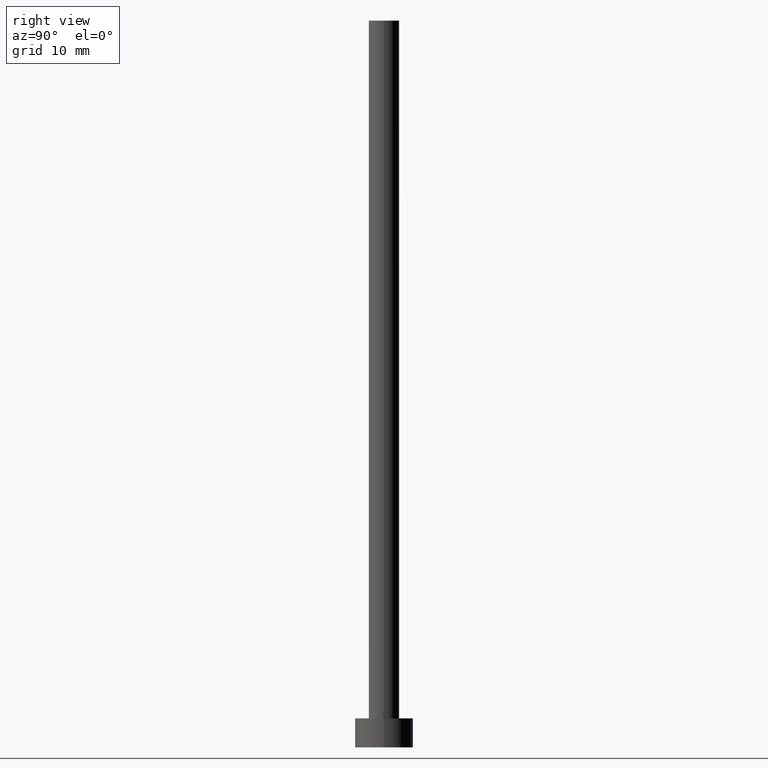
[diagram: clean part render]
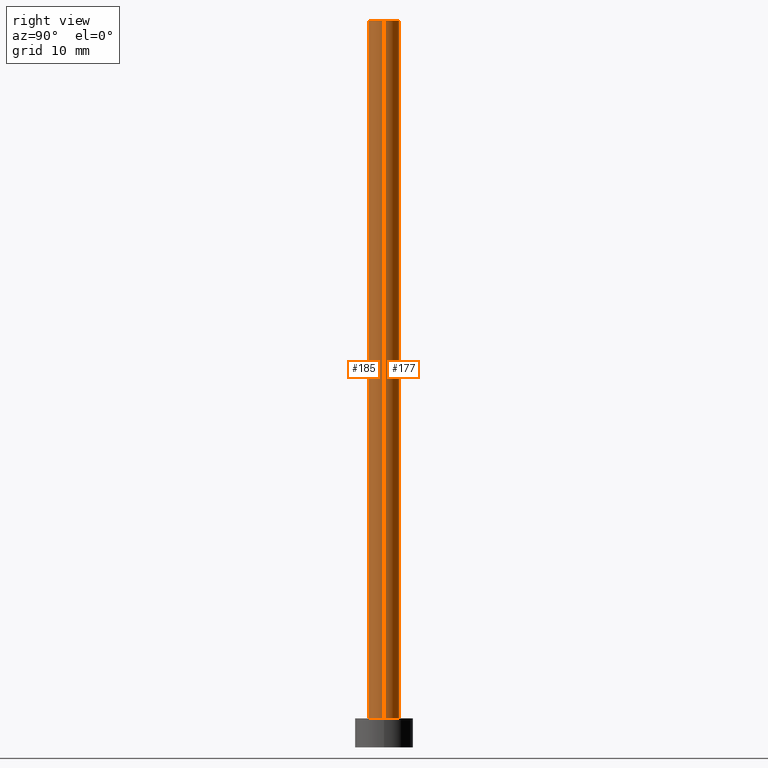
[diagram: same view with one multi-face feature highlighted, each face labeled with its STEP entity id]
A machine part, right view. The highlighted faces form ONE feature: a constant-radius fillet chain: 2 tangent blend faces with common blend radius 2.1 mm. The faces share edges in the B-rep.
Their STEP definitions:
[1] entity #177 (Cylinder):
#4 = VERTEX_POINT ( 'NONE', #62 ) ;
#6 = VERTEX_POINT ( 'NONE', #16 ) ;
#11 = AXIS2_PLACEMENT_3D ( 'NONE', #151, #246, #188 ) ;
#16 = CARTESIAN_POINT ( 'NONE',  ( 2.100000000000000089, 2.571758278209441957E-16, 100.0000000000000000 ) ) ;
#22 = DIRECTION ( 'NONE',  ( -0.000000000000000000, -0.000000000000000000, -1.000000000000000000 ) ) ;
#25 = EDGE_CURVE ( 'NONE', #6, #4, #172, .T. ) ;
#41 = LINE ( 'NONE', #105, #207 ) ;
#42 = DIRECTION ( 'NONE',  ( -1.000000000000000000, 0.000000000000000000, 0.000000000000000000 ) ) ;
#55 = ORIENTED_EDGE ( 'NONE', *, *, #25, .T. ) ;
#57 = EDGE_CURVE ( 'NONE', #6, #129, #235, .T. ) ;
#60 = AXIS2_PLACEMENT_3D ( 'NONE', #109, #180, #42 ) ;
#62 = CARTESIAN_POINT ( 'NONE',  ( 2.100000000000000089, 2.571758278209441957E-16, 4.000000000000000000 ) ) ;
#77 = CYLINDRICAL_SURFACE ( 'NONE', #60, 2.100000000000000089 ) ;
#80 = CARTESIAN_POINT ( 'NONE',  ( -2.100000000000000089, 0.000000000000000000, 100.0000000000000000 ) ) ;
#84 = AXIS2_PLACEMENT_3D ( 'NONE', #213, #152, #208 ) ;
#96 = ORIENTED_EDGE ( 'NONE', *, *, #139, .F. ) ;
#105 = CARTESIAN_POINT ( 'NONE',  ( -2.100000000000000089, 0.000000000000000000, 100.0000000000000000 ) ) ;
#109 = CARTESIAN_POINT ( 'NONE',  ( 0.000000000000000000, 0.000000000000000000, 100.0000000000000000 ) ) ;
#114 = ORIENTED_EDGE ( 'NONE', *, *, #134, .T. ) ;
#121 = CARTESIAN_POINT ( 'NONE',  ( -2.100000000000000089, 0.000000000000000000, 4.000000000000000000 ) ) ;
#129 = VERTEX_POINT ( 'NONE', #80 ) ;
#130 = ORIENTED_EDGE ( 'NONE', *, *, #57, .F. ) ;
#133 = VERTEX_POINT ( 'NONE', #121 ) ;
#134 = EDGE_CURVE ( 'NONE', #4, #133, #254, .T. ) ;
#139 = EDGE_CURVE ( 'NONE', #129, #133, #41, .T. ) ;
#148 = EDGE_LOOP ( 'NONE', ( #130, #55, #114, #96 ) ) ;
#151 = CARTESIAN_POINT ( 'NONE',  ( 0.000000000000000000, 0.000000000000000000, 100.0000000000000000 ) ) ;
#152 = DIRECTION ( 'NONE',  ( 0.000000000000000000, 0.000000000000000000, 1.000000000000000000 ) ) ;
#156 = VECTOR ( 'NONE', #191, 1000.000000000000000 ) ;
#172 = LINE ( 'NONE', #214, #156 ) ;
#177 = ADVANCED_FACE ( 'NONE', ( #244 ), #77, .T. ) ;
#180 = DIRECTION ( 'NONE',  ( -0.000000000000000000, -0.000000000000000000, -1.000000000000000000 ) ) ;
#188 = DIRECTION ( 'NONE',  ( 1.000000000000000000, 0.000000000000000000, 0.000000000000000000 ) ) ;
#191 = DIRECTION ( 'NONE',  ( -0.000000000000000000, -0.000000000000000000, -1.000000000000000000 ) ) ;
#207 = VECTOR ( 'NONE', #22, 1000.000000000000000 ) ;
#208 = DIRECTION ( 'NONE',  ( 1.000000000000000000, 0.000000000000000000, 0.000000000000000000 ) ) ;
#213 = CARTESIAN_POINT ( 'NONE',  ( 0.000000000000000000, 0.000000000000000000, 4.000000000000000000 ) ) ;
#214 = CARTESIAN_POINT ( 'NONE',  ( 2.100000000000000089, 2.571758278209441957E-16, 100.0000000000000000 ) ) ;
#235 = CIRCLE ( 'NONE', #11, 2.100000000000000089 ) ;
#244 = FACE_OUTER_BOUND ( 'NONE', #148, .T. ) ;
#246 = DIRECTION ( 'NONE',  ( 0.000000000000000000, 0.000000000000000000, 1.000000000000000000 ) ) ;
#254 = CIRCLE ( 'NONE', #84, 2.100000000000000089 ) ;
[2] entity #185 (Cylinder):
#1 = CARTESIAN_POINT ( 'NONE',  ( 0.000000000000000000, 0.000000000000000000, 100.0000000000000000 ) ) ;
#4 = VERTEX_POINT ( 'NONE', #62 ) ;
#6 = VERTEX_POINT ( 'NONE', #16 ) ;
#9 = ORIENTED_EDGE ( 'NONE', *, *, #139, .T. ) ;
#15 = CIRCLE ( 'NONE', #27, 2.100000000000000089 ) ;
#16 = CARTESIAN_POINT ( 'NONE',  ( 2.100000000000000089, 2.571758278209441957E-16, 100.0000000000000000 ) ) ;
#21 = EDGE_CURVE ( 'NONE', #133, #4, #15, .T. ) ;
#22 = DIRECTION ( 'NONE',  ( -0.000000000000000000, -0.000000000000000000, -1.000000000000000000 ) ) ;
#25 = EDGE_CURVE ( 'NONE', #6, #4, #172, .T. ) ;
#27 = AXIS2_PLACEMENT_3D ( 'NONE', #132, #100, #184 ) ;
#41 = LINE ( 'NONE', #105, #207 ) ;
#44 = CYLINDRICAL_SURFACE ( 'NONE', #204, 2.100000000000000089 ) ;
#52 = ORIENTED_EDGE ( 'NONE', *, *, #25, .F. ) ;
#62 = CARTESIAN_POINT ( 'NONE',  ( 2.100000000000000089, 2.571758278209441957E-16, 4.000000000000000000 ) ) ;
#72 = ORIENTED_EDGE ( 'NONE', *, *, #154, .F. ) ;
#80 = CARTESIAN_POINT ( 'NONE',  ( -2.100000000000000089, 0.000000000000000000, 100.0000000000000000 ) ) ;
#100 = DIRECTION ( 'NONE',  ( 0.000000000000000000, 0.000000000000000000, 1.000000000000000000 ) ) ;
#105 = CARTESIAN_POINT ( 'NONE',  ( -2.100000000000000089, 0.000000000000000000, 100.0000000000000000 ) ) ;
#112 = ORIENTED_EDGE ( 'NONE', *, *, #21, .T. ) ;
#121 = CARTESIAN_POINT ( 'NONE',  ( -2.100000000000000089, 0.000000000000000000, 4.000000000000000000 ) ) ;
#128 = CIRCLE ( 'NONE', #173, 2.100000000000000089 ) ;
#129 = VERTEX_POINT ( 'NONE', #80 ) ;
#132 = CARTESIAN_POINT ( 'NONE',  ( 0.000000000000000000, 0.000000000000000000, 4.000000000000000000 ) ) ;
#133 = VERTEX_POINT ( 'NONE', #121 ) ;
#139 = EDGE_CURVE ( 'NONE', #129, #133, #41, .T. ) ;
#154 = EDGE_CURVE ( 'NONE', #129, #6, #128, .T. ) ;
#156 = VECTOR ( 'NONE', #191, 1000.000000000000000 ) ;
#158 = CARTESIAN_POINT ( 'NONE',  ( 0.000000000000000000, 0.000000000000000000, 100.0000000000000000 ) ) ;
#171 = DIRECTION ( 'NONE',  ( 1.000000000000000000, 0.000000000000000000, 0.000000000000000000 ) ) ;
#172 = LINE ( 'NONE', #214, #156 ) ;
#173 = AXIS2_PLACEMENT_3D ( 'NONE', #158, #230, #171 ) ;
#184 = DIRECTION ( 'NONE',  ( 1.000000000000000000, 0.000000000000000000, 0.000000000000000000 ) ) ;
#185 = ADVANCED_FACE ( 'NONE', ( #194 ), #44, .T. ) ;
#191 = DIRECTION ( 'NONE',  ( -0.000000000000000000, -0.000000000000000000, -1.000000000000000000 ) ) ;
#194 = FACE_OUTER_BOUND ( 'NONE', #237, .T. ) ;
#204 = AXIS2_PLACEMENT_3D ( 'NONE', #1, #255, #231 ) ;
#207 = VECTOR ( 'NONE', #22, 1000.000000000000000 ) ;
#214 = CARTESIAN_POINT ( 'NONE',  ( 2.100000000000000089, 2.571758278209441957E-16, 100.0000000000000000 ) ) ;
#230 = DIRECTION ( 'NONE',  ( 0.000000000000000000, 0.000000000000000000, 1.000000000000000000 ) ) ;
#231 = DIRECTION ( 'NONE',  ( -1.000000000000000000, 0.000000000000000000, 0.000000000000000000 ) ) ;
#237 = EDGE_LOOP ( 'NONE', ( #52, #72, #9, #112 ) ) ;
#255 = DIRECTION ( 'NONE',  ( -0.000000000000000000, -0.000000000000000000, -1.000000000000000000 ) ) ;